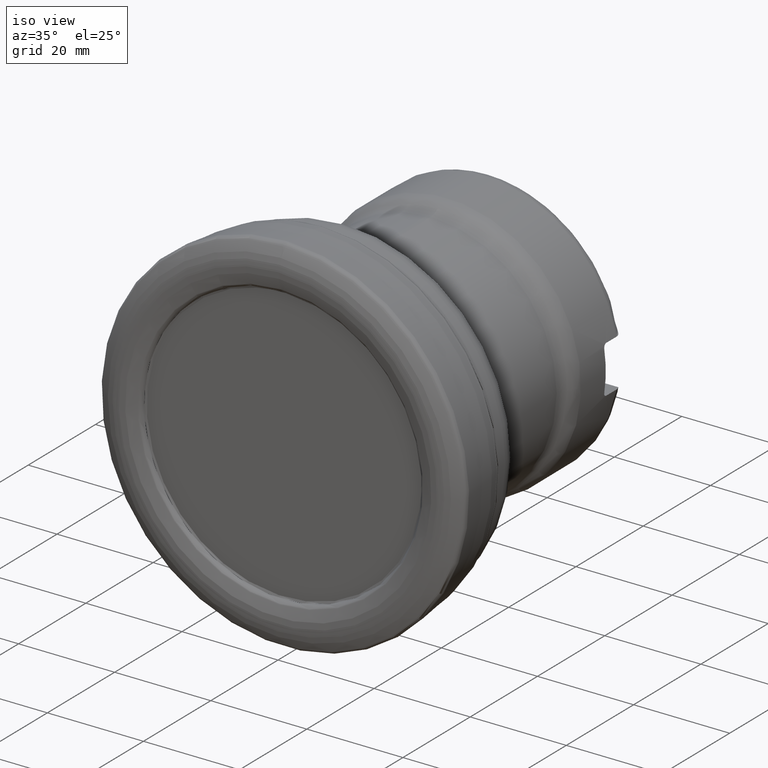
[diagram: clean part render]
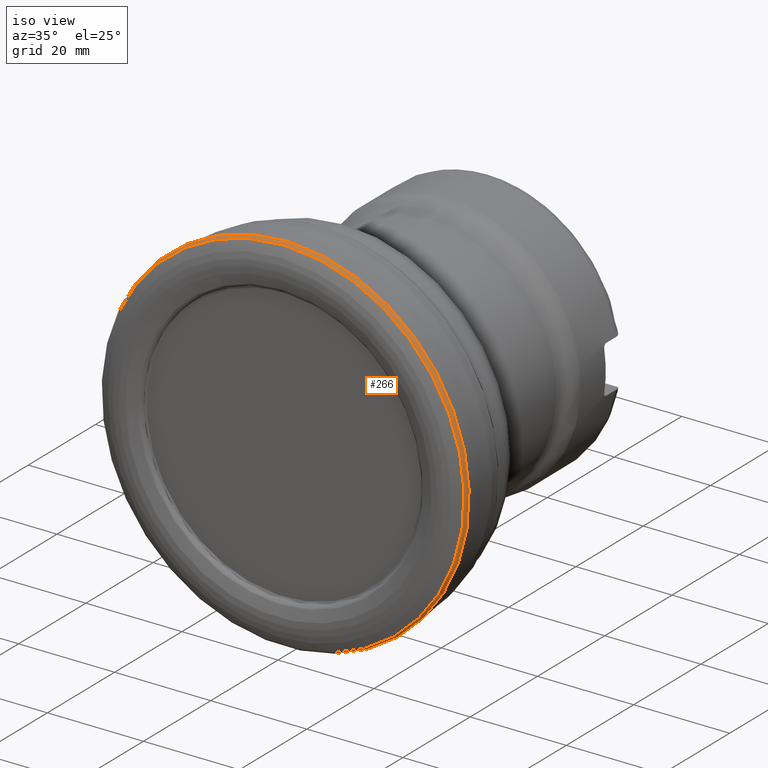
[diagram: same view with one face highlighted and labeled with its STEP entity id]
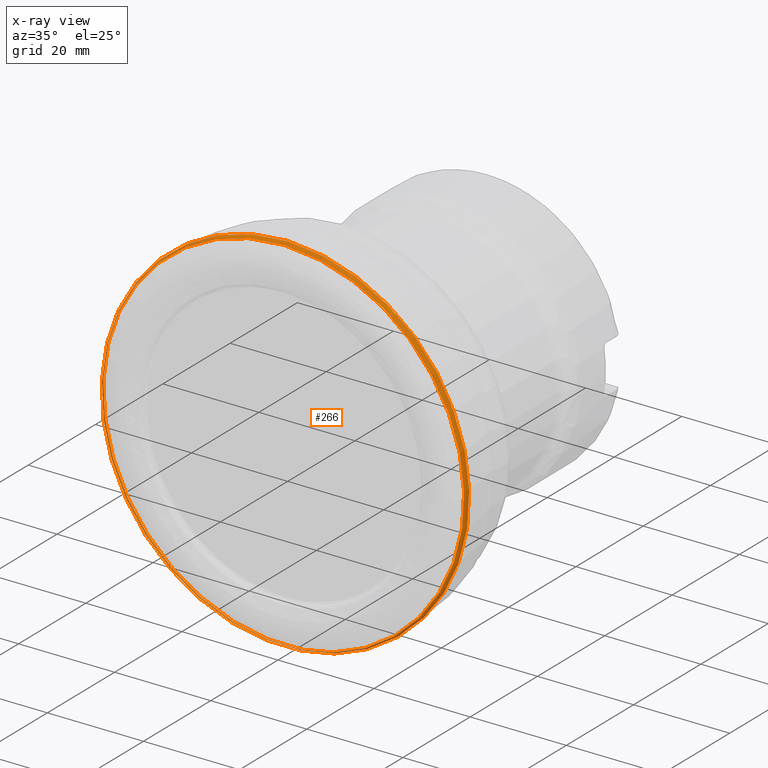
[diagram: x-ray of the same camera — body ghosted, the highlighted face saturated]
A machine part, iso view. The second image highlights one B-rep face of the part: STEP entity #266.
The next image is the same camera in x-ray: the body ghosted, the highlighted face saturated — about 0% of this face is hidden behind the body in this view.
In plain terms, the highlighted face is a SurfaceOfRevolution surface.
Its self-contained STEP definition (entity closure, byte-faithful):
#116=SURFACE_OF_REVOLUTION('',#328,#141);
#141=AXIS1_PLACEMENT('',#1956,#1415);
#266=ADVANCED_FACE('',(#461,#462),#116,.F.);
#328=B_SPLINE_CURVE_WITH_KNOTS('',3,(#1949,#1950,#1951,#1952,#1953,#1954,
#1955),.UNSPECIFIED.,.F.,.F.,(4,1,1,1,4),(0.,0.25,0.5,0.75,1.),
 .UNSPECIFIED.);
#461=FACE_BOUND('',#575,.T.);
#462=FACE_BOUND('',#576,.T.);
#575=EDGE_LOOP('',(#799));
#576=EDGE_LOOP('',(#800));
#799=ORIENTED_EDGE('',*,*,#1019,.T.);
#800=ORIENTED_EDGE('',*,*,#1018,.F.);
#906=VERTEX_POINT('',#1944);
#907=VERTEX_POINT('',#1948);
#1018=EDGE_CURVE('',#906,#906,#1078,.T.);
#1019=EDGE_CURVE('',#907,#907,#1079,.T.);
#1078=CIRCLE('',#1180,38.1);
#1079=CIRCLE('',#1181,37.7077047635256);
#1180=AXIS2_PLACEMENT_3D('',#1943,#1409,#1410);
#1181=AXIS2_PLACEMENT_3D('',#1947,#1413,#1414);
#1409=DIRECTION('',(0.,1.,0.));
#1410=DIRECTION('',(0.,0.,1.));
#1413=DIRECTION('',(0.,1.,0.));
#1414=DIRECTION('',(0.,0.,1.));
#1415=DIRECTION('',(0.,1.,0.));
#1943=CARTESIAN_POINT('',(0.,2.42293715933076,0.));
#1944=CARTESIAN_POINT('',(0.,2.42293715933076,38.1));
#1947=CARTESIAN_POINT('',(0.,1.50000000000001,0.));
#1948=CARTESIAN_POINT('',(0.,1.50000000000001,37.7077047635256));
#1949=CARTESIAN_POINT('',(37.2061535399997,2.42293715933076,8.20439752559352));
#1950=CARTESIAN_POINT('',(37.2160590655187,2.33987727428843,8.20534258484985));
#1951=CARTESIAN_POINT('',(37.215910102089,2.16511687510381,8.204161450841));
#1952=CARTESIAN_POINT('',(37.1448243242798,1.90335688010688,8.19516542560166));
#1953=CARTESIAN_POINT('',(37.0062175775309,1.6704907774518,8.18124521679826));
#1954=CARTESIAN_POINT('',(36.880376275145,1.54979966883727,8.1696931153947));
#1955=CARTESIAN_POINT('',(36.8134621916115,1.50000000000001,8.16333265278341));
#1956=CARTESIAN_POINT('',(0.,0.,0.));